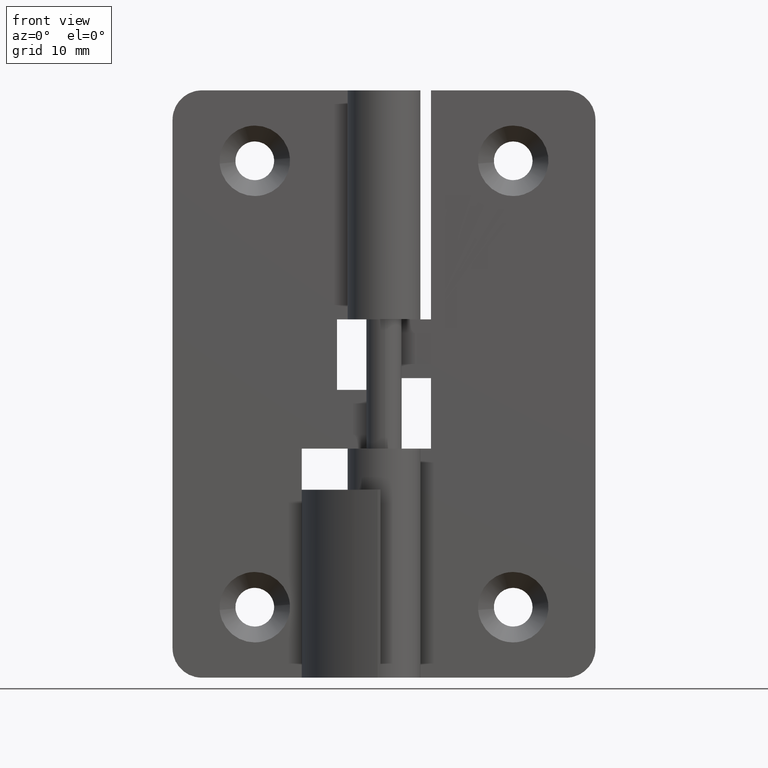
[diagram: clean part render]
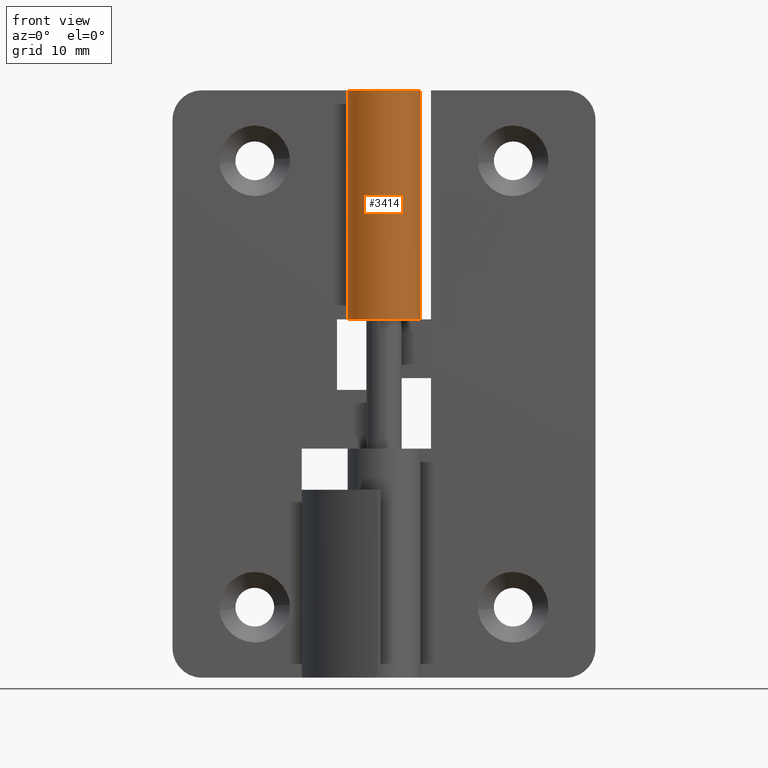
[diagram: same view with one face highlighted and labeled with its STEP entity id]
A machine part, front view. The second image highlights one B-rep face of the part: STEP entity #3414.
In plain terms, the highlighted face is a freeform B-spline surface patch.
Its self-contained STEP definition (entity closure, byte-faithful):
#3019=CARTESIAN_POINT('',(-2.739983519494215,1.450000935483876,30.500000000000000));
#3020=VERTEX_POINT('',#3019);
#3021=CARTESIAN_POINT('',(0.0,3.100002000000045,30.500000000000000));
#3022=VERTEX_POINT('',#3021);
#3023=CARTESIAN_POINT('',(-2.739983519494212,1.450000935483875,30.500000000000000));
#3024=CARTESIAN_POINT('',(-3.842029887064144,-0.632472813991613,30.499999999999996));
#3025=CARTESIAN_POINT('',(-2.130596259932659,-2.251793058246021,30.500000000000000));
#3026=CARTESIAN_POINT('',(-0.419162632801175,-3.871113302500427,30.499999999999996));
#3027=CARTESIAN_POINT('',(1.599219590925853,-2.655656058303286,30.500000000000000));
#3028=CARTESIAN_POINT('',(3.617601814652884,-1.440198814106145,30.499999999999996));
#3029=CARTESIAN_POINT('',(2.986850472659814,0.829901592946927,30.500000000000000));
#3030=CARTESIAN_POINT('',(2.356099130666744,3.100002000000000,30.499999999999996));
#3031=CARTESIAN_POINT('',(0.0,3.100002000000000,30.500000000000000));
#3039=(BOUNDED_CURVE()B_SPLINE_CURVE(2,(#3023,#3024,#3025,#3026,#3027,#3028,#3029,#3030,#3031),.UNSPECIFIED.,.F.,.U.)B_SPLINE_CURVE_WITH_KNOTS((3,2,2,2,3),(0.0,0.250000000000000,0.500000000000000,0.750000000000000,1.0),.UNSPECIFIED.)CURVE()GEOMETRIC_REPRESENTATION_ITEM()RATIONAL_B_SPLINE_CURVE((1.0,0.796150117301084,1.0,0.796150117301084,1.0,0.796150117301084,1.0,0.796150117301084,1.0))REPRESENTATION_ITEM(''));
#3040=EDGE_CURVE('',#3020,#3022,#3039,.T.);
#3219=CARTESIAN_POINT('',(0.0,3.100002000000000,50.0));
#3220=VERTEX_POINT('',#3219);
#3255=CARTESIAN_POINT('',(-2.739983519494215,1.450000935483874,50.0));
#3256=VERTEX_POINT('',#3255);
#3262=CARTESIAN_POINT('',(0.0,3.100002000000000,50.0));
#3263=CARTESIAN_POINT('',(2.356099130666743,3.100002000000000,50.0));
#3264=CARTESIAN_POINT('',(2.986850472659813,0.829901592946929,50.0));
#3265=CARTESIAN_POINT('',(3.617601814652883,-1.440198814106142,50.0));
#3266=CARTESIAN_POINT('',(1.599219590925857,-2.655656058303284,50.0));
#3267=CARTESIAN_POINT('',(-0.419162632801170,-3.871113302500427,50.0));
#3268=CARTESIAN_POINT('',(-2.130596259932656,-2.251793058246024,50.0));
#3269=CARTESIAN_POINT('',(-3.842029887064142,-0.632472813991620,50.0));
#3270=CARTESIAN_POINT('',(-2.739983519494214,1.450000935483871,50.0));
#3278=(BOUNDED_CURVE()B_SPLINE_CURVE(2,(#3262,#3263,#3264,#3265,#3266,#3267,#3268,#3269,#3270),.UNSPECIFIED.,.F.,.U.)B_SPLINE_CURVE_WITH_KNOTS((3,2,2,2,3),(0.0,0.250000000000000,0.500000000000000,0.750000000000000,1.0),.UNSPECIFIED.)CURVE()GEOMETRIC_REPRESENTATION_ITEM()RATIONAL_B_SPLINE_CURVE((1.0,0.796150117301085,1.0,0.796150117301085,1.0,0.796150117301085,1.0,0.796150117301085,1.0))REPRESENTATION_ITEM(''));
#3279=EDGE_CURVE('',#3220,#3256,#3278,.T.);
#3373=CARTESIAN_POINT('',(-2.739983519494215,1.450000935483874,50.0));
#3374=CARTESIAN_POINT('',(-2.739983519494215,1.450000935483876,30.500000000000000));
#3375=QUASI_UNIFORM_CURVE('',1,(#3373,#3374),.UNSPECIFIED.,.F.,.U.);
#3376=EDGE_CURVE('',#3256,#3020,#3375,.T.);
#3382=CARTESIAN_POINT('',(-2.698104398125080,1.526514021167868,50.487500000000011));
#3383=CARTESIAN_POINT('',(-2.698104398125080,1.526514021167868,30.000312500000000));
#3384=CARTESIAN_POINT('',(-4.560927914194644,-1.766015396801631,50.487500000000004));
#3385=CARTESIAN_POINT('',(-4.560927914194644,-1.766015396801631,30.000312500000000));
#3386=CARTESIAN_POINT('',(-0.966525426048390,-2.945478059807266,50.487500000000011));
#3387=CARTESIAN_POINT('',(-0.966525426048390,-2.945478059807266,30.000312500000000));
#3388=CARTESIAN_POINT('',(2.627877062097864,-4.124940722812903,50.487500000000004));
#3389=CARTESIAN_POINT('',(2.627877062097864,-4.124940722812903,30.000312500000000));
#3390=CARTESIAN_POINT('',(3.077980997633688,-0.368843297634543,50.487500000000011));
#3391=CARTESIAN_POINT('',(3.077980997633688,-0.368843297634543,30.000312500000000));
#3392=CARTESIAN_POINT('',(3.528084933169511,3.387254127543817,50.487500000000004));
#3393=CARTESIAN_POINT('',(3.528084933169511,3.387254127543817,30.000312500000000));
#3394=CARTESIAN_POINT('',(-0.243223353674512,3.090445728407364,50.487500000000011));
#3395=CARTESIAN_POINT('',(-0.243223353674512,3.090445728407364,30.000312500000000));
#3403=(BOUNDED_SURFACE()B_SPLINE_SURFACE(1,2,((#3382,#3384,#3386,#3388,#3390,#3392,#3394),(#3383,#3385,#3387,#3389,#3391,#3393,#3395)),.UNSPECIFIED.,.F.,.F.,.U.)B_SPLINE_SURFACE_WITH_KNOTS((2,2),(3,2,2,3),(0.0,20.487187500000019),(0.0,5.870285316567483,11.740570633134970,17.610855949702451),.UNSPECIFIED.)GEOMETRIC_REPRESENTATION_ITEM()RATIONAL_B_SPLINE_SURFACE(((1.0,0.633830967398710,1.0,0.633830967398710,1.0,0.633830967398710,1.0),(1.0,0.633830967398710,1.0,0.633830967398710,1.0,0.633830967398710,1.0)))REPRESENTATION_ITEM('')SURFACE());
#3404=ORIENTED_EDGE('',*,*,#3376,.T.);
#3405=ORIENTED_EDGE('',*,*,#3040,.T.);
#3406=CARTESIAN_POINT('',(0.0,3.100002000000000,50.0));
#3407=CARTESIAN_POINT('',(0.0,3.100002000000045,30.500000000000000));
#3408=QUASI_UNIFORM_CURVE('',1,(#3406,#3407),.UNSPECIFIED.,.F.,.U.);
#3409=EDGE_CURVE('',#3220,#3022,#3408,.T.);
#3410=ORIENTED_EDGE('',*,*,#3409,.F.);
#3411=ORIENTED_EDGE('',*,*,#3279,.T.);
#3412=EDGE_LOOP('',(#3404,#3405,#3410,#3411));
#3413=FACE_OUTER_BOUND('',#3412,.T.);
#3414=ADVANCED_FACE('',(#3413),#3403,.T.);